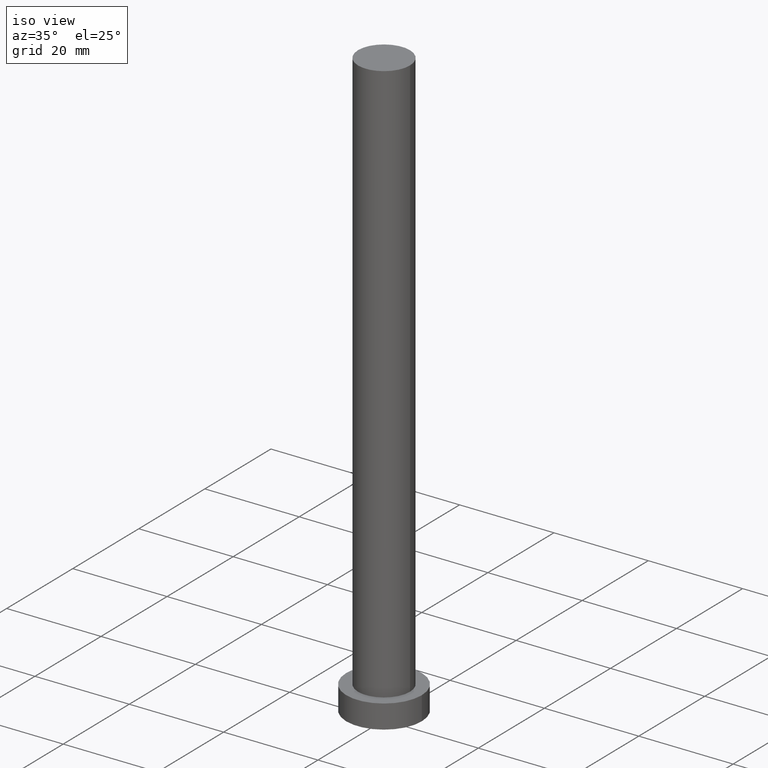
[diagram: clean part render]
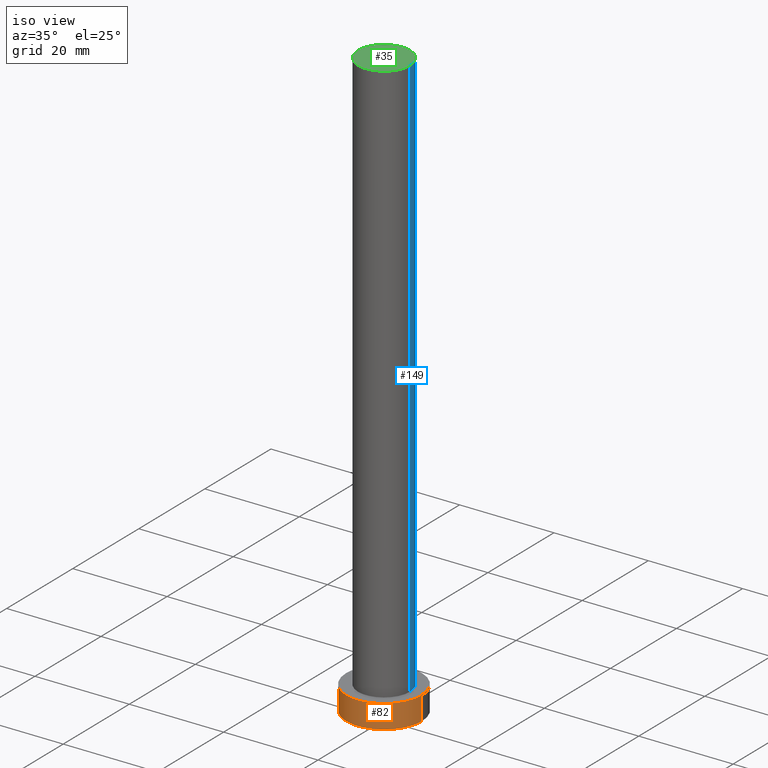
[diagram: same view with three faces highlighted in distinct colors, each labeled with its STEP entity id]
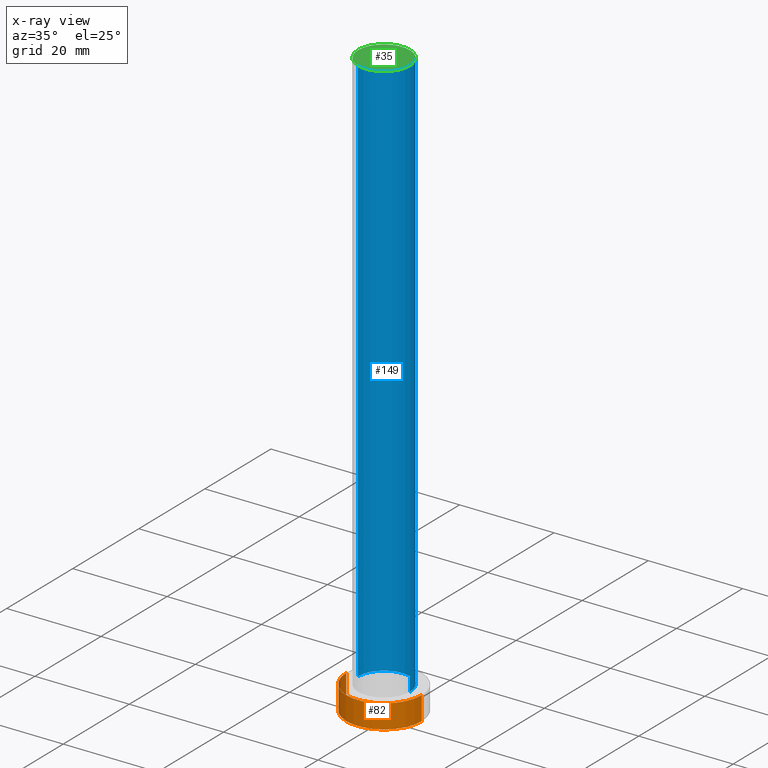
[diagram: x-ray of the same camera — body ghosted, the three highlighted faces saturated]
A machine part, iso view with three faces highlighted in distinct colors.
The next image is the same camera in x-ray (body ghosted, the three faces saturated) — at least one of them is partly hidden behind the body in this view.
Their STEP definitions:

[orange] entity #82 — the highlighted cylindrical surface (partial cylindrical patch) has radius 8 mm, axis along (-0, -0, -1).
#3 = EDGE_CURVE ( 'NONE', #204, #247, #64, .T. ) ;
#12 = CARTESIAN_POINT ( 'NONE',  ( -8.000000000000000000, 0.000000000000000000, 0.000000000000000000 ) ) ;
#13 = VERTEX_POINT ( 'NONE', #12 ) ;
#37 = DIRECTION ( 'NONE',  ( -1.000000000000000000, 0.000000000000000000, 0.000000000000000000 ) ) ;
#42 = CARTESIAN_POINT ( 'NONE',  ( 8.000000000000000000, 9.797174393178825657E-16, 5.000000000000000000 ) ) ;
#48 = CARTESIAN_POINT ( 'NONE',  ( -8.000000000000000000, 0.000000000000000000, 5.000000000000000000 ) ) ;
#64 = LINE ( 'NONE', #126, #210 ) ;
#72 = CARTESIAN_POINT ( 'NONE',  ( 8.000000000000000000, 9.797174393178825657E-16, 0.000000000000000000 ) ) ;
#73 = DIRECTION ( 'NONE',  ( -0.000000000000000000, -0.000000000000000000, -1.000000000000000000 ) ) ;
#74 = AXIS2_PLACEMENT_3D ( 'NONE', #194, #73, #37 ) ;
#77 = CARTESIAN_POINT ( 'NONE',  ( 0.000000000000000000, 0.000000000000000000, 0.000000000000000000 ) ) ;
#82 = ADVANCED_FACE ( 'NONE', ( #111 ), #231, .T. ) ;
#111 = FACE_OUTER_BOUND ( 'NONE', #120, .T. ) ;
#114 = AXIS2_PLACEMENT_3D ( 'NONE', #77, #255, #116 ) ;
#116 = DIRECTION ( 'NONE',  ( 1.000000000000000000, 0.000000000000000000, 0.000000000000000000 ) ) ;
#120 = EDGE_LOOP ( 'NONE', ( #242, #146, #169, #225 ) ) ;
#126 = CARTESIAN_POINT ( 'NONE',  ( 8.000000000000000000, 9.797174393178825657E-16, 5.000000000000000000 ) ) ;
#132 = EDGE_CURVE ( 'NONE', #13, #247, #173, .T. ) ;
#135 = AXIS2_PLACEMENT_3D ( 'NONE', #209, #220, #245 ) ;
#146 = ORIENTED_EDGE ( 'NONE', *, *, #222, .F. ) ;
#166 = DIRECTION ( 'NONE',  ( -0.000000000000000000, -0.000000000000000000, -1.000000000000000000 ) ) ;
#169 = ORIENTED_EDGE ( 'NONE', *, *, #224, .T. ) ;
#173 = CIRCLE ( 'NONE', #114, 8.000000000000000000 ) ;
#184 = VECTOR ( 'NONE', #166, 1000.000000000000000 ) ;
#186 = CARTESIAN_POINT ( 'NONE',  ( -8.000000000000000000, 0.000000000000000000, 5.000000000000000000 ) ) ;
#194 = CARTESIAN_POINT ( 'NONE',  ( 0.000000000000000000, 0.000000000000000000, 5.000000000000000000 ) ) ;
#204 = VERTEX_POINT ( 'NONE', #42 ) ;
#208 = DIRECTION ( 'NONE',  ( -0.000000000000000000, -0.000000000000000000, -1.000000000000000000 ) ) ;
#209 = CARTESIAN_POINT ( 'NONE',  ( 0.000000000000000000, 0.000000000000000000, 5.000000000000000000 ) ) ;
#210 = VECTOR ( 'NONE', #208, 1000.000000000000000 ) ;
#220 = DIRECTION ( 'NONE',  ( 0.000000000000000000, 0.000000000000000000, 1.000000000000000000 ) ) ;
#222 = EDGE_CURVE ( 'NONE', #230, #204, #244, .T. ) ;
#224 = EDGE_CURVE ( 'NONE', #230, #13, #249, .T. ) ;
#225 = ORIENTED_EDGE ( 'NONE', *, *, #132, .T. ) ;
#230 = VERTEX_POINT ( 'NONE', #48 ) ;
#231 = CYLINDRICAL_SURFACE ( 'NONE', #74, 8.000000000000000000 ) ;
#242 = ORIENTED_EDGE ( 'NONE', *, *, #3, .F. ) ;
#244 = CIRCLE ( 'NONE', #135, 8.000000000000000000 ) ;
#245 = DIRECTION ( 'NONE',  ( 1.000000000000000000, 0.000000000000000000, 0.000000000000000000 ) ) ;
#247 = VERTEX_POINT ( 'NONE', #72 ) ;
#249 = LINE ( 'NONE', #186, #184 ) ;
#255 = DIRECTION ( 'NONE',  ( 0.000000000000000000, 0.000000000000000000, 1.000000000000000000 ) ) ;

[blue] entity #149 — the highlighted cylindrical surface (edge-blend (fillet) strip) has radius 5.5 mm, axis along (-0, -0, -1).
#1 = DIRECTION ( 'NONE',  ( -0.000000000000000000, -0.000000000000000000, -1.000000000000000000 ) ) ;
#4 = VERTEX_POINT ( 'NONE', #14 ) ;
#11 = EDGE_CURVE ( 'NONE', #83, #214, #109, .T. ) ;
#14 = CARTESIAN_POINT ( 'NONE',  ( 5.500000000000000000, 6.735557395310442023E-16, 125.0000000000000000 ) ) ;
#40 = DIRECTION ( 'NONE',  ( -1.000000000000000000, 0.000000000000000000, 0.000000000000000000 ) ) ;
#50 = ORIENTED_EDGE ( 'NONE', *, *, #181, .T. ) ;
#56 = CARTESIAN_POINT ( 'NONE',  ( 0.000000000000000000, 0.000000000000000000, 125.0000000000000000 ) ) ;
#58 = CARTESIAN_POINT ( 'NONE',  ( -5.500000000000000000, 0.000000000000000000, 125.0000000000000000 ) ) ;
#62 = VECTOR ( 'NONE', #1, 1000.000000000000000 ) ;
#79 = DIRECTION ( 'NONE',  ( 0.000000000000000000, 0.000000000000000000, 1.000000000000000000 ) ) ;
#81 = ORIENTED_EDGE ( 'NONE', *, *, #118, .T. ) ;
#83 = VERTEX_POINT ( 'NONE', #58 ) ;
#85 = ORIENTED_EDGE ( 'NONE', *, *, #193, .F. ) ;
#87 = ORIENTED_EDGE ( 'NONE', *, *, #11, .F. ) ;
#97 = DIRECTION ( 'NONE',  ( 0.000000000000000000, 0.000000000000000000, 1.000000000000000000 ) ) ;
#109 = LINE ( 'NONE', #190, #119 ) ;
#118 = EDGE_CURVE ( 'NONE', #140, #214, #229, .T. ) ;
#119 = VECTOR ( 'NONE', #253, 1000.000000000000000 ) ;
#137 = CARTESIAN_POINT ( 'NONE',  ( -5.500000000000000000, 0.000000000000000000, 5.000000000000000000 ) ) ;
#138 = DIRECTION ( 'NONE',  ( -0.000000000000000000, -0.000000000000000000, -1.000000000000000000 ) ) ;
#140 = VERTEX_POINT ( 'NONE', #195 ) ;
#149 = ADVANCED_FACE ( 'NONE', ( #153 ), #234, .T. ) ;
#151 = AXIS2_PLACEMENT_3D ( 'NONE', #196, #97, #172 ) ;
#153 = FACE_OUTER_BOUND ( 'NONE', #252, .T. ) ;
#162 = LINE ( 'NONE', #182, #62 ) ;
#172 = DIRECTION ( 'NONE',  ( 1.000000000000000000, 0.000000000000000000, 0.000000000000000000 ) ) ;
#175 = AXIS2_PLACEMENT_3D ( 'NONE', #56, #138, #40 ) ;
#176 = CARTESIAN_POINT ( 'NONE',  ( 0.000000000000000000, 0.000000000000000000, 125.0000000000000000 ) ) ;
#181 = EDGE_CURVE ( 'NONE', #4, #140, #162, .T. ) ;
#182 = CARTESIAN_POINT ( 'NONE',  ( 5.500000000000000000, 6.735557395310442023E-16, 125.0000000000000000 ) ) ;
#190 = CARTESIAN_POINT ( 'NONE',  ( -5.500000000000000000, 0.000000000000000000, 125.0000000000000000 ) ) ;
#193 = EDGE_CURVE ( 'NONE', #4, #83, #251, .T. ) ;
#195 = CARTESIAN_POINT ( 'NONE',  ( 5.500000000000000000, 6.735557395310442023E-16, 5.000000000000000000 ) ) ;
#196 = CARTESIAN_POINT ( 'NONE',  ( 0.000000000000000000, 0.000000000000000000, 5.000000000000000000 ) ) ;
#214 = VERTEX_POINT ( 'NONE', #137 ) ;
#223 = AXIS2_PLACEMENT_3D ( 'NONE', #176, #79, #236 ) ;
#229 = CIRCLE ( 'NONE', #151, 5.500000000000000000 ) ;
#234 = CYLINDRICAL_SURFACE ( 'NONE', #175, 5.500000000000000000 ) ;
#236 = DIRECTION ( 'NONE',  ( 1.000000000000000000, 0.000000000000000000, 0.000000000000000000 ) ) ;
#251 = CIRCLE ( 'NONE', #223, 5.500000000000000000 ) ;
#252 = EDGE_LOOP ( 'NONE', ( #85, #50, #81, #87 ) ) ;
#253 = DIRECTION ( 'NONE',  ( -0.000000000000000000, -0.000000000000000000, -1.000000000000000000 ) ) ;

[green] entity #35 — the highlighted planar face has unit normal (0, 0, 1).
#4 = VERTEX_POINT ( 'NONE', #14 ) ;
#14 = CARTESIAN_POINT ( 'NONE',  ( 5.500000000000000000, 6.735557395310442023E-16, 125.0000000000000000 ) ) ;
#35 = ADVANCED_FACE ( 'NONE', ( #95 ), #92, .T. ) ;
#41 = DIRECTION ( 'NONE',  ( 1.000000000000000000, 0.000000000000000000, 0.000000000000000000 ) ) ;
#46 = AXIS2_PLACEMENT_3D ( 'NONE', #250, #170, #171 ) ;
#58 = CARTESIAN_POINT ( 'NONE',  ( -5.500000000000000000, 0.000000000000000000, 125.0000000000000000 ) ) ;
#75 = CARTESIAN_POINT ( 'NONE',  ( 0.000000000000000000, 0.000000000000000000, 125.0000000000000000 ) ) ;
#78 = ORIENTED_EDGE ( 'NONE', *, *, #193, .T. ) ;
#79 = DIRECTION ( 'NONE',  ( 0.000000000000000000, 0.000000000000000000, 1.000000000000000000 ) ) ;
#83 = VERTEX_POINT ( 'NONE', #58 ) ;
#92 = PLANE ( 'NONE',  #46 ) ;
#94 = ORIENTED_EDGE ( 'NONE', *, *, #192, .T. ) ;
#95 = FACE_OUTER_BOUND ( 'NONE', #239, .T. ) ;
#99 = AXIS2_PLACEMENT_3D ( 'NONE', #75, #139, #41 ) ;
#139 = DIRECTION ( 'NONE',  ( 0.000000000000000000, 0.000000000000000000, 1.000000000000000000 ) ) ;
#170 = DIRECTION ( 'NONE',  ( 0.000000000000000000, 0.000000000000000000, 1.000000000000000000 ) ) ;
#171 = DIRECTION ( 'NONE',  ( 1.000000000000000000, 0.000000000000000000, -0.000000000000000000 ) ) ;
#176 = CARTESIAN_POINT ( 'NONE',  ( 0.000000000000000000, 0.000000000000000000, 125.0000000000000000 ) ) ;
#192 = EDGE_CURVE ( 'NONE', #83, #4, #219, .T. ) ;
#193 = EDGE_CURVE ( 'NONE', #4, #83, #251, .T. ) ;
#219 = CIRCLE ( 'NONE', #99, 5.500000000000000000 ) ;
#223 = AXIS2_PLACEMENT_3D ( 'NONE', #176, #79, #236 ) ;
#236 = DIRECTION ( 'NONE',  ( 1.000000000000000000, 0.000000000000000000, 0.000000000000000000 ) ) ;
#239 = EDGE_LOOP ( 'NONE', ( #94, #78 ) ) ;
#250 = CARTESIAN_POINT ( 'NONE',  ( 0.000000000000000000, 0.000000000000000000, 125.0000000000000000 ) ) ;
#251 = CIRCLE ( 'NONE', #223, 5.500000000000000000 ) ;